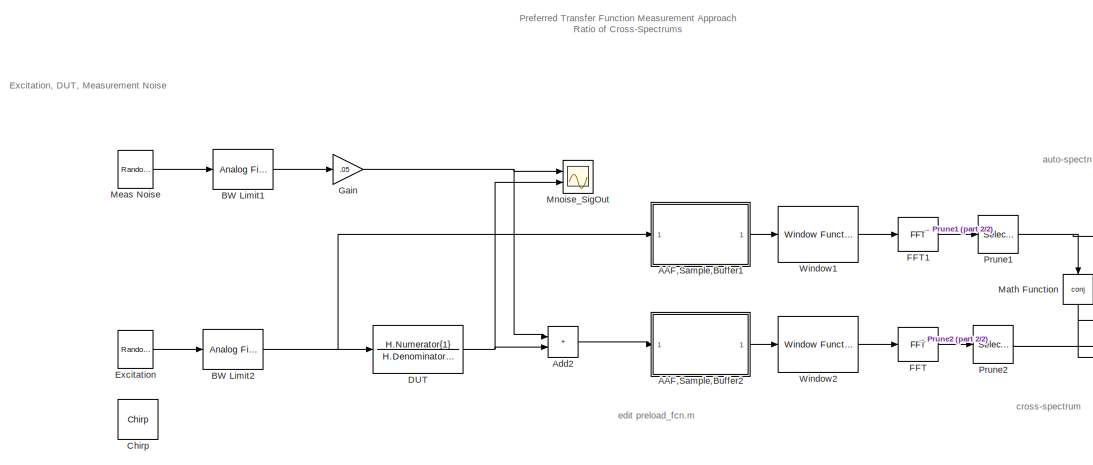
[diagram: root canvas - part 1/2, left side, full height]
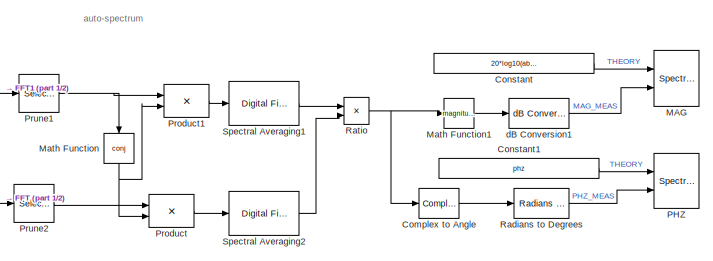
[diagram: root canvas - part 2/2, middle right region]
MODEL slx_c6965d69c5b7
KIND model
CONFIG AbsTol = auto
CONFIG EnableMultiTasking = off
CONFIG FixedStep = auto
CONFIG MaxStep = auto
CONFIG MinStep = auto
CONFIG PreLoadFcn = preload_fcn
CONFIG RelTol = 1e-6
CONFIG SampleTimeConstraint = Unconstrained
CONFIG SolverName = VariableStepAuto
CONFIG StartFcn = tic
CONFIG StartTime = 0.0
CONFIG StopFcn = trun = toc
CONFIG StopTime = 100*NFFT/Fs
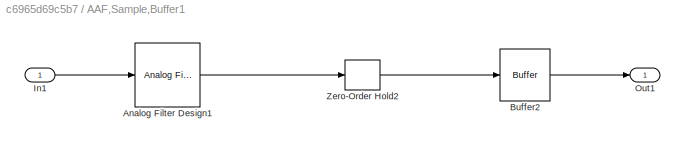
BLOCK [SubSystem] AAF,Sample,Buffer1
  Ports = [1, 1]
  RequestExecContextInheritance = off
BLOCK [Reference] AAF,Sample,Buffer1/Analog Filter Design1  REF=dsparch4/Analog
Filter Design
  Ports = [1, 1]
  SourceBlock = dsparch4/Analog\nFilter Design
  SourceProductBaseCode = DS
  SourceType = Analog Filter Design
BLOCK [Buffer] AAF,Sample,Buffer1/Buffer2
  N = NFFT
  OutputFrames = off
BLOCK [Inport] AAF,Sample,Buffer1/In1
BLOCK [Outport] AAF,Sample,Buffer1/Out1
BLOCK [ZeroOrderHold] AAF,Sample,Buffer1/Zero-Order Hold2
  SampleTime = 1/Fs
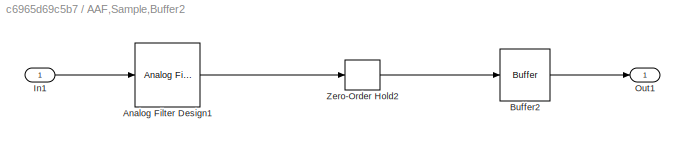
BLOCK [SubSystem] AAF,Sample,Buffer2
  Ports = [1, 1]
  RequestExecContextInheritance = off
BLOCK [Reference] AAF,Sample,Buffer2/Analog Filter Design1  REF=dsparch4/Analog
Filter Design
  Ports = [1, 1]
  SourceBlock = dsparch4/Analog\nFilter Design
  SourceProductBaseCode = DS
  SourceType = Analog Filter Design
BLOCK [Buffer] AAF,Sample,Buffer2/Buffer2
  N = NFFT
  OutputFrames = off
BLOCK [Inport] AAF,Sample,Buffer2/In1
BLOCK [Outport] AAF,Sample,Buffer2/Out1
BLOCK [ZeroOrderHold] AAF,Sample,Buffer2/Zero-Order Hold2
  SampleTime = 1/Fs
BLOCK [Sum] Add2
  IconShape = rectangular
  Ports = [2, 1]
BLOCK [Reference] BW Limit1  REF=dsparch4/Analog
Filter Design
  Ports = [1, 1]
  SourceBlock = dsparch4/Analog\nFilter Design
  SourceProductBaseCode = DS
  SourceType = Analog Filter Design
BLOCK [Reference] BW Limit2  REF=dsparch4/Analog
Filter Design
  Ports = [1, 1]
  SourceBlock = dsparch4/Analog\nFilter Design
  SourceProductBaseCode = DS
  SourceType = Analog Filter Design
BLOCK [Reference] Chirp  REF=dspsrcs4/Chirp
  Commented = on
  Ports = [0, 1]
  SourceBlock = dspsrcs4/Chirp
  SourceProductBaseCode = DS
  SourceType = Chirp
BLOCK [ComplexToMagnitudeAngle] Complex to Angle
  Output = Angle
  Ports = [1, 1]
BLOCK [Constant] Constant
  SampleTime = (NFFT/OSR)/BW
  Value = 20*log10(abs(mag))
  VectorParams1D = off
BLOCK [Constant] Constant1
  SampleTime = (NFFT/OSR)/BW
  Value = phz
  VectorParams1D = off
BLOCK [TransferFcn] DUT  
  Denominator = H.Denominator{1}
  Numerator = H.Numerator{1}
BLOCK [Reference] Excitation  REF=dspsrcs4/Random
Source
  Ports = [0, 1]
  SourceBlock = dspsrcs4/Random\nSource
  SourceProductBaseCode = DS
  SourceType = Random Source
  UserDataPersistent = on
BLOCK [Reference] FFT  REF=dspxfrm3/FFT
  Ports = [1, 1]
  SourceBlock = dspxfrm3/FFT
  SourceProductBaseCode = DS
  SourceType = FFT
BLOCK [Reference] FFT1  REF=dspxfrm3/FFT
  Ports = [1, 1]
  SourceBlock = dspxfrm3/FFT
  SourceProductBaseCode = DS
  SourceType = FFT
BLOCK [Gain] Gain
  Gain = .05
BLOCK [SpectrumAnalyzer] MAG
  IsFrequencyInputMode = 1
  NumInputPorts = 2
  Ports = [2]
  ScopeSpecificationString = spbscopes.SpectrumAnalyzerBlockCfg('CurrentConfiguration', extmgr.ConfigurationSet(extmgr.Configuration('Core','General UI',true),extmgr.Configuration('Core','Source UI',true),extmgr.Configuration('Sources','WiredSimulink',true),extmgr.Configuration('Sources','SimulinkEvent',false),extmgr.Configuration('Sources','Simulink',false),extmgr.Configuration('Sources','SPTool',false),extmgr.Configuration(...<+3519ch>
BLOCK [Math] Math Function
  NameLocation = left
  Operator = conj
  Ports = [1, 1]
  SignedPower = on
BLOCK [Math] Math Function1
  Operator = magnitude^2
  Ports = [1, 1]
  SignedPower = on
BLOCK [Reference] Meas Noise  REF=dspsrcs4/Random
Source
  Ports = [0, 1]
  SourceBlock = dspsrcs4/Random\nSource
  SourceProductBaseCode = DS
  SourceType = Random Source
  UserDataPersistent = on
BLOCK [Scope] Mnoise_SigOut
  Floating = off
  NumInputPorts = 2
  Ports = [2]
  ScopeSpecificationString = Simulink.scopes.TimeScopeBlockCfg('CurrentConfiguration', extmgr.ConfigurationSet(extmgr.Configuration('Core','General UI',true),extmgr.Configuration('Core','Source UI',true),extmgr.Configuration('Sources','WiredSimulink',true),extmgr.Configuration('Visuals','Time Domain',true,'SerializedDisplays',{struct('MinYLimReal','-3.62126','MaxYLimReal','4.19014','YLabelReal','','MinYLimMag','0.00000','MaxY...<+1513ch>
BLOCK [SpectrumAnalyzer] PHZ
  IsFrequencyInputMode = 1
  NumInputPorts = 2
  Ports = [2]
  ScopeSpecificationString = spbscopes.SpectrumAnalyzerBlockCfg('CurrentConfiguration', extmgr.ConfigurationSet(extmgr.Configuration('Core','General UI',true),extmgr.Configuration('Core','Source UI',true),extmgr.Configuration('Sources','WiredSimulink',true),extmgr.Configuration('Sources','SimulinkEvent',false),extmgr.Configuration('Sources','Simulink',false),extmgr.Configuration('Sources','SPTool',false),extmgr.Configuration(...<+3604ch>
BLOCK [Product] Product
  InputSameDT = on
  OutDataTypeStr = Inherit: Same as first input
  Ports = [2, 1]
  SaturateOnIntegerOverflow = on
BLOCK [Product] Product1
  InputSameDT = on
  OutDataTypeStr = Inherit: Same as first input
  Ports = [2, 1]
  SaturateOnIntegerOverflow = on
BLOCK [Selector] Prune1
  IndexOptions = Index vector (dialog),Select all
  Indices = [1:NFFT/OSR],1
  InputPortWidth = 3
  NumberOfDimensions = 2
  OutputSizes = 1,1
  Ports = [1, 1]
BLOCK [Selector] Prune2
  IndexOptions = Index vector (dialog),Select all
  Indices = [1:NFFT/OSR],1
  InputPortWidth = 3
  NumberOfDimensions = 2
  OutputSizes = 1,1
  Ports = [1, 1]
BLOCK [Reference] Radians to Degrees  REF=simulink_extras/Transformations/Radians
to Degrees
  Ports = [1, 1]
  SourceBlock = simulink_extras/Transformations/Radians\nto Degrees
  SourceProductBaseCode = SL
  SourceType = RadiansToDegrees
BLOCK [Product] Ratio
  InputSameDT = on
  Inputs = /*
  OutDataTypeStr = Inherit: Same as first input
  Ports = [2, 1]
  SaturateOnIntegerOverflow = on
BLOCK [Reference] Spectral Averaging1  REF=dspobslib/Digital Filter
  Ports = [1, 1]
  SourceBlock = dspobslib/Digital Filter
  SourceProductBaseCode = DS
  SourceType = Digital Filter
  UserDataPersistent = on
BLOCK [Reference] Spectral Averaging2  REF=dspobslib/Digital Filter
  Ports = [1, 1]
  SourceBlock = dspobslib/Digital Filter
  SourceProductBaseCode = DS
  SourceType = Digital Filter
  UserDataPersistent = on
BLOCK [Reference] Window1  REF=dspsigops/Window
Function
  Ports = [1, 1]
  SourceBlock = dspsigops/Window\nFunction
  SourceProductBaseCode = DS
  SourceType = Window Function
BLOCK [Reference] Window2  REF=dspsigops/Window
Function
  Ports = [1, 1]
  SourceBlock = dspsigops/Window\nFunction
  SourceProductBaseCode = DS
  SourceType = Window Function
BLOCK [Reference] dB Conversion1  REF=dspmathops/dB Conversion
  Ports = [1, 1]
  SourceBlock = dspmathops/dB Conversion
  SourceProductBaseCode = DS
  SourceType = dB Conversion
ANNOTATION (root): Preferred Transfer Function Measurement Approach Ratio of Cross-Spectrums
ANNOTATION (root): auto-spectrum
ANNOTATION (root): cross-spectrum
ANNOTATION (root): Excitation, DUT, Measurement Noise
ANNOTATION (root): edit preload_fcn.m
LINE AAF,Sample,Buffer1/Analog Filter Design1:1 -> AAF,Sample,Buffer1/Zero-Order Hold2:1
LINE AAF,Sample,Buffer1/Buffer2:1 -> AAF,Sample,Buffer1/Out1:1
LINE AAF,Sample,Buffer1/In1:1 -> AAF,Sample,Buffer1/Analog Filter Design1:1
LINE AAF,Sample,Buffer1/Zero-Order Hold2:1 -> AAF,Sample,Buffer1/Buffer2:1
LINE AAF,Sample,Buffer1:1 -> Window1:1
LINE AAF,Sample,Buffer2/Analog Filter Design1:1 -> AAF,Sample,Buffer2/Zero-Order Hold2:1
LINE AAF,Sample,Buffer2/Buffer2:1 -> AAF,Sample,Buffer2/Out1:1
LINE AAF,Sample,Buffer2/In1:1 -> AAF,Sample,Buffer2/Analog Filter Design1:1
LINE AAF,Sample,Buffer2/Zero-Order Hold2:1 -> AAF,Sample,Buffer2/Buffer2:1
LINE AAF,Sample,Buffer2:1 -> Window2:1
LINE Add2:1 -> AAF,Sample,Buffer2:1
LINE BW Limit1:1 -> Gain:1
NET BW Limit2:1 -> AAF,Sample,Buffer1:1, DUT  :1
LINE Complex to Angle:1 -> Radians to Degrees:1
LINE Constant1:1 -> PHZ:1
LINE Constant:1 -> MAG:1
NET DUT  :1 -> Add2:2, Mnoise_SigOut:2
LINE Excitation:1 -> BW Limit2:1
LINE FFT1:1 -> Prune1:1
LINE FFT:1 -> Prune2:1
NET Gain:1 -> Add2:1, Mnoise_SigOut:1
LINE Math Function1:1 -> dB Conversion1:1
NET Math Function:1 -> Product1:2, Product:2
LINE Meas Noise:1 -> BW Limit1:1
LINE Product1:1 -> Spectral Averaging1:1
LINE Product:1 -> Spectral Averaging2:1
NET Prune1:1 -> Math Function:1, Product1:1
LINE Prune2:1 -> Product:1
LINE Radians to Degrees:1 -> PHZ:2
NET Ratio:1 -> Complex to Angle:1, Math Function1:1
LINE Spectral Averaging1:1 -> Ratio:1
LINE Spectral Averaging2:1 -> Ratio:2
LINE Window1:1 -> FFT1:1
LINE Window2:1 -> FFT:1
LINE dB Conversion1:1 -> MAG:2
note: NET lines group one-source signal fan-out (src -> all destinations, sorted); 1:1 wires keep LINE
